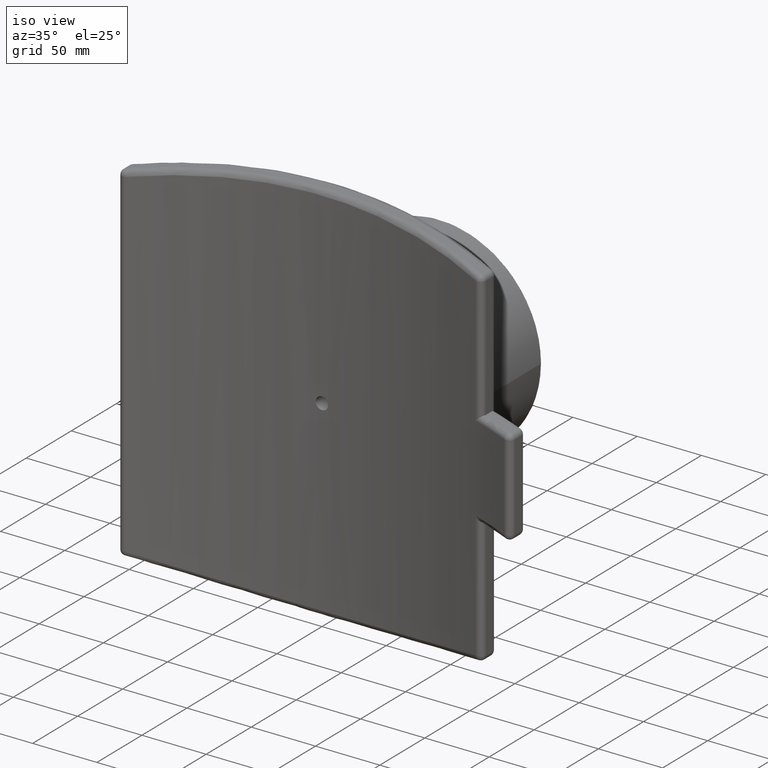
[diagram: clean part render]
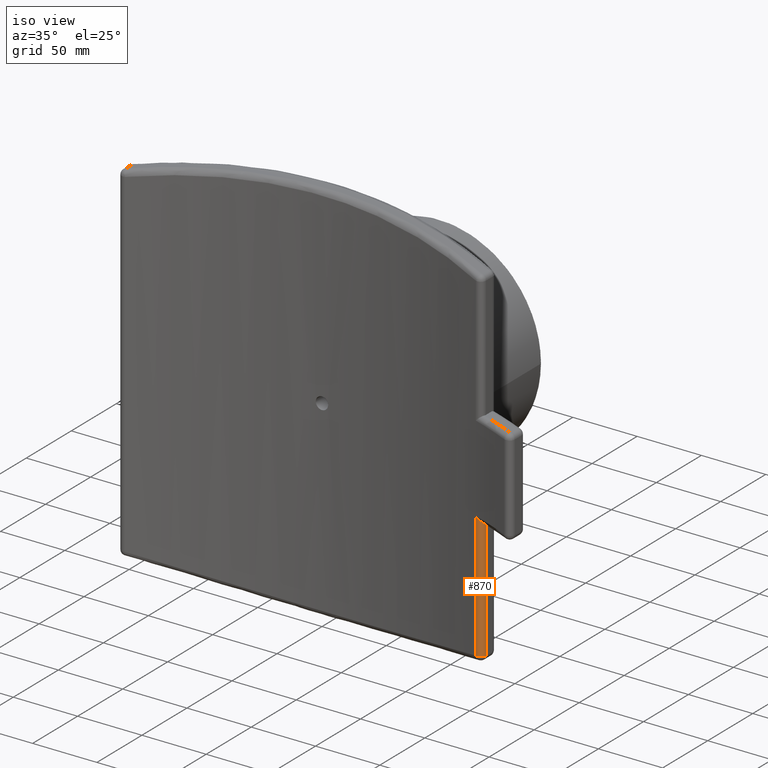
[diagram: same view with one face highlighted and labeled with its STEP entity id]
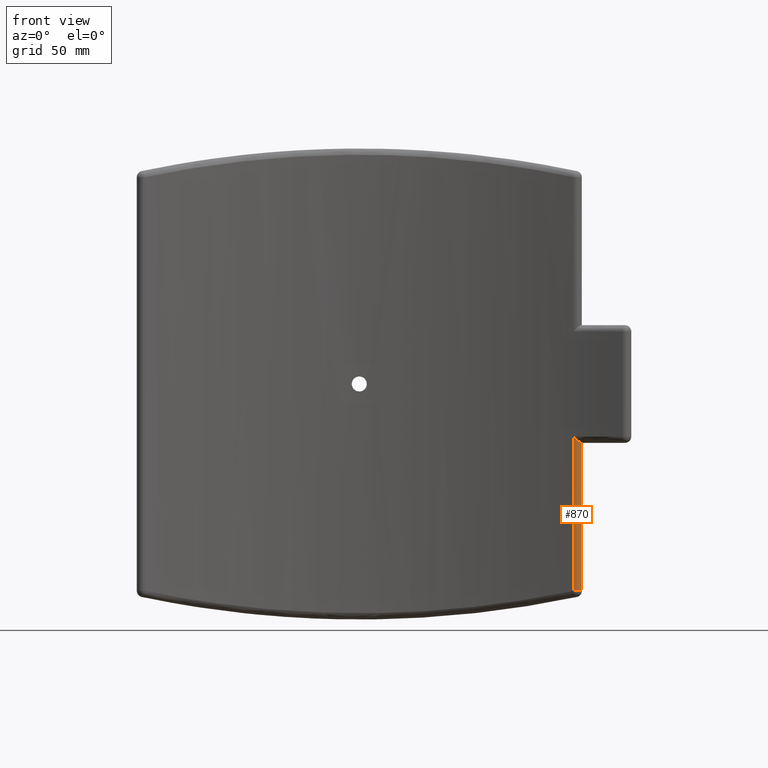
[diagram: same view with one face highlighted and labeled with its STEP entity id]
A machine part, iso view. The second image highlights one B-rep face of the part: STEP entity #870.
A second angle (front view) of the same face is appended — the face is thin or edge-on in the first view.
In plain terms, the highlighted cylindrical surface (edge-blend (fillet) strip) has radius 4 mm, axis along (0, 0, 1).
Its self-contained STEP definition (entity closure, byte-faithful):
#53=LINE('',#2209,#83);
#54=LINE('',#2211,#84);
#83=VECTOR('',#1258,98.2576130740142);
#84=VECTOR('',#1259,94.2576130740143);
#110=B_SPLINE_CURVE_WITH_KNOTS('',3,(#2116,#2117,#2118,#2119,#2120,#2121,
#2122,#2123,#2124,#2125,#2126,#2127),.UNSPECIFIED.,.F.,.F.,(4,2,2,2,2,4),
(-1.47412679214054,-1.47309801359994,-1.22484859392732,-1.03001341182143,
-0.884895301304785,-0.767645615821951),.UNSPECIFIED.);
#136=CYLINDRICAL_SURFACE('',#995,4.);
#233=FACE_OUTER_BOUND('',#320,.T.);
#320=EDGE_LOOP('',(#754,#755,#756,#757,#758));
#357=CIRCLE('',#931,3.99999999999997);
#396=CIRCLE('',#996,4.);
#431=VERTEX_POINT('',#1808);
#433=VERTEX_POINT('',#1811);
#463=VERTEX_POINT('',#2112);
#464=VERTEX_POINT('',#2114);
#467=VERTEX_POINT('',#2210);
#506=EDGE_CURVE('',#433,#431,#357,.F.);
#564=EDGE_CURVE('',#464,#463,#110,.T.);
#575=EDGE_CURVE('',#464,#433,#53,.T.);
#576=EDGE_CURVE('',#431,#467,#54,.T.);
#577=EDGE_CURVE('',#467,#463,#396,.T.);
#754=ORIENTED_EDGE('',*,*,#575,.T.);
#755=ORIENTED_EDGE('',*,*,#506,.T.);
#756=ORIENTED_EDGE('',*,*,#576,.T.);
#757=ORIENTED_EDGE('',*,*,#577,.T.);
#758=ORIENTED_EDGE('',*,*,#564,.F.);
#870=ADVANCED_FACE('',(#233),#136,.T.);
#931=AXIS2_PLACEMENT_3D('',#1812,#1109,#1110);
#995=AXIS2_PLACEMENT_3D('',#2208,#1256,#1257);
#996=AXIS2_PLACEMENT_3D('',#2212,#1260,#1261);
#1109=DIRECTION('center_axis',(-8.88178419700124E-15,3.22142152400426E-15,
-1.));
#1110=DIRECTION('ref_axis',(-0.340965346534661,-0.940075865269659,0.));
#1256=DIRECTION('center_axis',(0.,0.,1.));
#1257=DIRECTION('ref_axis',(0.574035997767272,-0.818830063729546,0.));
#1258=DIRECTION('',(0.,0.,-1.));
#1259=DIRECTION('',(0.,0.,1.));
#1260=DIRECTION('center_axis',(0.,0.,-1.));
#1261=DIRECTION('ref_axis',(0.574035997767272,-0.818830063729546,0.));
#1808=CARTESIAN_POINT('',(141.750000000004,379.790649568942,-131.757613074014));
#1811=CARTESIAN_POINT('',(136.386138613865,376.030346107864,-131.757613074014));
#1812=CARTESIAN_POINT('Origin',(137.750000000004,379.790649568942,-131.757613074014));
#2112=CARTESIAN_POINT('',(141.503505594126,378.408189531587,-37.5));
#2114=CARTESIAN_POINT('',(136.386138613865,376.030346107864,-33.5));
#2116=CARTESIAN_POINT('Ctrl Pts',(136.386138613865,376.030346107864,-33.5));
#2117=CARTESIAN_POINT('Ctrl Pts',(136.388919446883,376.02933750023,-33.5029728479362));
#2118=CARTESIAN_POINT('Ctrl Pts',(136.391701399589,376.028331977024,-33.5059456967639));
#2119=CARTESIAN_POINT('Ctrl Pts',(137.0660525673,375.78543648167,-34.2262807615509));
#2120=CARTESIAN_POINT('Ctrl Pts',(137.79020496388,375.727482531549,-34.9302261307075));
#2121=CARTESIAN_POINT('Ctrl Pts',(139.043833129904,375.964330143185,-36.0310091490378));
#2122=CARTESIAN_POINT('Ctrl Pts',(139.564400528203,376.182243593896,-36.4463097749371));
#2123=CARTESIAN_POINT('Ctrl Pts',(140.366957027867,376.736966702277,-37.0100113562608));
#2124=CARTESIAN_POINT('Ctrl Pts',(140.689829372005,377.039187809821,-37.2091268207539));
#2125=CARTESIAN_POINT('Ctrl Pts',(141.186556563581,377.709972797139,-37.4438915412188));
#2126=CARTESIAN_POINT('Ctrl Pts',(141.369749083143,378.045028356102,-37.5));
#2127=CARTESIAN_POINT('Ctrl Pts',(141.503505594127,378.408189531586,-37.5));
#2208=CARTESIAN_POINT('Origin',(137.750000000004,379.790649568942,0.));
#2209=CARTESIAN_POINT('',(136.386138613865,376.030346107864,0.));
#2210=CARTESIAN_POINT('',(141.750000000004,379.790649568942,-37.5));
#2211=CARTESIAN_POINT('',(141.750000000004,379.790649568942,0.));
#2212=CARTESIAN_POINT('Origin',(137.750000000004,379.790649568942,-37.5));